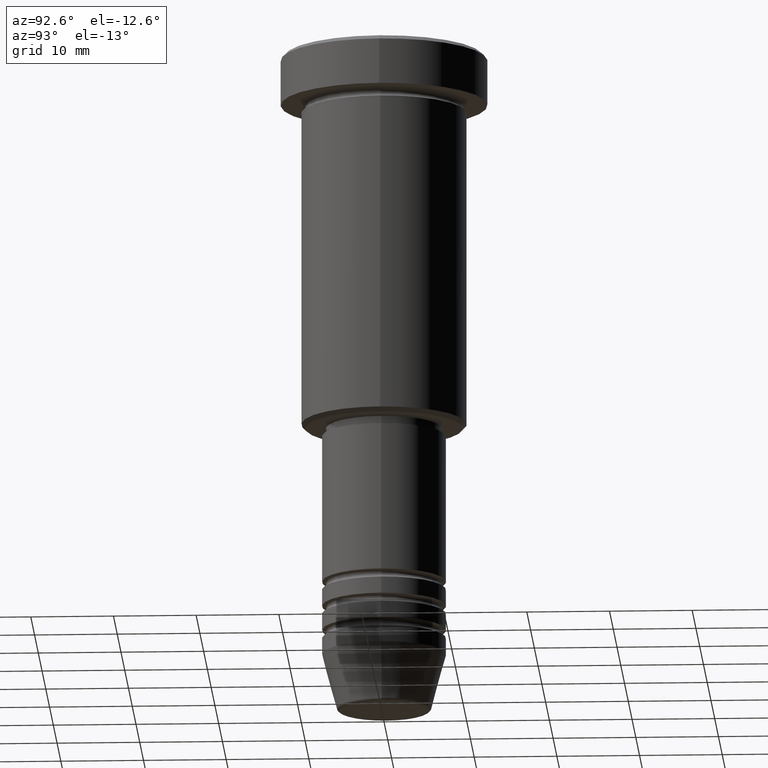
[diagram: clean part render]
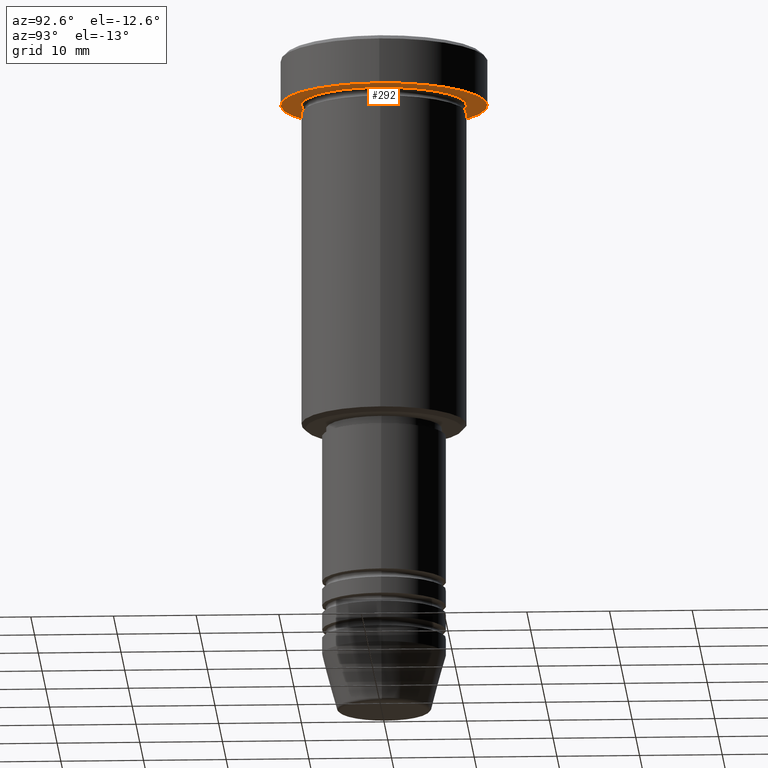
[diagram: same view with one face highlighted and labeled with its STEP entity id]
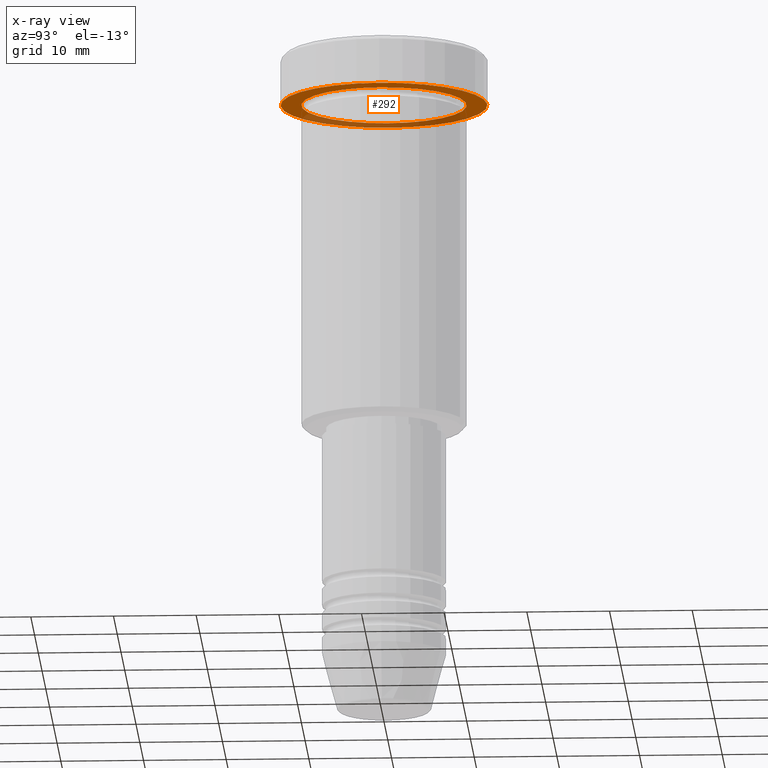
[diagram: x-ray of the same camera — body ghosted, the highlighted face saturated]
A machine part, auxiliary view. The second image highlights one B-rep face of the part: STEP entity #292.
The next image is the same camera in x-ray: the body ghosted, the highlighted face saturated — about 32% of this face is hidden behind the body in this view.
In plain terms, the highlighted planar face has unit normal (0, 0, -1).
Its self-contained STEP definition (entity closure, byte-faithful):
#19 = EDGE_CURVE ( 'NONE', #1157, #955, #952, .T. ) ;
#31 = DIRECTION ( 'NONE',  ( -0.000000000000000000, -0.000000000000000000, 1.000000000000000000 ) ) ;
#74 = DIRECTION ( 'NONE',  ( 1.000000000000000000, 0.000000000000000000, 0.000000000000000000 ) ) ;
#101 = CIRCLE ( 'NONE', #722, 12.50000000000000000 ) ;
#128 = ORIENTED_EDGE ( 'NONE', *, *, #862, .T. ) ;
#146 = CARTESIAN_POINT ( 'NONE',  ( 12.50000000000000000, 0.000000000000000000, -5.999999999999996447 ) ) ;
#152 = ORIENTED_EDGE ( 'NONE', *, *, #19, .T. ) ;
#166 = EDGE_CURVE ( 'NONE', #614, #869, #888, .T. ) ;
#182 = CARTESIAN_POINT ( 'NONE',  ( 10.00000000000000000, 1.224646799147353256E-15, -5.999999999999996447 ) ) ;
#212 = CIRCLE ( 'NONE', #647, 10.00000000000000000 ) ;
#274 = DIRECTION ( 'NONE',  ( -1.000000000000000000, 0.000000000000000000, 0.000000000000000000 ) ) ;
#277 = AXIS2_PLACEMENT_3D ( 'NONE', #820, #921, #839 ) ;
#292 = ADVANCED_FACE ( 'NONE', ( #556, #741 ), #732, .T. ) ;
#336 = CARTESIAN_POINT ( 'NONE',  ( 0.000000000000000000, 0.000000000000000000, -5.999999999999996447 ) ) ;
#342 = DIRECTION ( 'NONE',  ( 1.000000000000000000, 0.000000000000000000, 0.000000000000000000 ) ) ;
#359 = DIRECTION ( 'NONE',  ( -0.000000000000000000, -0.000000000000000000, 1.000000000000000000 ) ) ;
#520 = CARTESIAN_POINT ( 'NONE',  ( 0.000000000000000000, 0.000000000000000000, -5.999999999999996447 ) ) ;
#556 = FACE_BOUND ( 'NONE', #1170, .T. ) ;
#610 = DIRECTION ( 'NONE',  ( -0.000000000000000000, -0.000000000000000000, 1.000000000000000000 ) ) ;
#614 = VERTEX_POINT ( 'NONE', #146 ) ;
#616 = EDGE_CURVE ( 'NONE', #869, #614, #101, .T. ) ;
#647 = AXIS2_PLACEMENT_3D ( 'NONE', #1030, #31, #1025 ) ;
#667 = EDGE_LOOP ( 'NONE', ( #713, #1071 ) ) ;
#713 = ORIENTED_EDGE ( 'NONE', *, *, #166, .F. ) ;
#722 = AXIS2_PLACEMENT_3D ( 'NONE', #520, #610, #342 ) ;
#731 = CARTESIAN_POINT ( 'NONE',  ( 0.000000000000000000, 0.000000000000000000, -5.999999999999996447 ) ) ;
#732 = PLANE ( 'NONE',  #277 ) ;
#741 = FACE_OUTER_BOUND ( 'NONE', #667, .T. ) ;
#820 = CARTESIAN_POINT ( 'NONE',  ( 0.000000000000000000, 12.50000000000000000, -5.999999999999996447 ) ) ;
#839 = DIRECTION ( 'NONE',  ( -1.000000000000000000, 0.000000000000000000, -0.000000000000000000 ) ) ;
#847 = CARTESIAN_POINT ( 'NONE',  ( -10.00000000000000000, 0.000000000000000000, -5.999999999999996447 ) ) ;
#862 = EDGE_CURVE ( 'NONE', #955, #1157, #212, .T. ) ;
#869 = VERTEX_POINT ( 'NONE', #1120 ) ;
#888 = CIRCLE ( 'NONE', #1001, 12.50000000000000000 ) ;
#921 = DIRECTION ( 'NONE',  ( 0.000000000000000000, 0.000000000000000000, -1.000000000000000000 ) ) ;
#952 = CIRCLE ( 'NONE', #1103, 10.00000000000000000 ) ;
#955 = VERTEX_POINT ( 'NONE', #847 ) ;
#1001 = AXIS2_PLACEMENT_3D ( 'NONE', #336, #359, #74 ) ;
#1025 = DIRECTION ( 'NONE',  ( -1.000000000000000000, 0.000000000000000000, 0.000000000000000000 ) ) ;
#1030 = CARTESIAN_POINT ( 'NONE',  ( 0.000000000000000000, 0.000000000000000000, -5.999999999999996447 ) ) ;
#1071 = ORIENTED_EDGE ( 'NONE', *, *, #616, .F. ) ;
#1094 = DIRECTION ( 'NONE',  ( -0.000000000000000000, -0.000000000000000000, 1.000000000000000000 ) ) ;
#1103 = AXIS2_PLACEMENT_3D ( 'NONE', #731, #1094, #274 ) ;
#1120 = CARTESIAN_POINT ( 'NONE',  ( -12.50000000000000000, 1.530808498934191521E-15, -5.999999999999996447 ) ) ;
#1157 = VERTEX_POINT ( 'NONE', #182 ) ;
#1170 = EDGE_LOOP ( 'NONE', ( #128, #152 ) ) ;